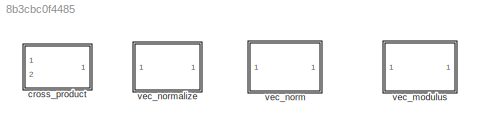
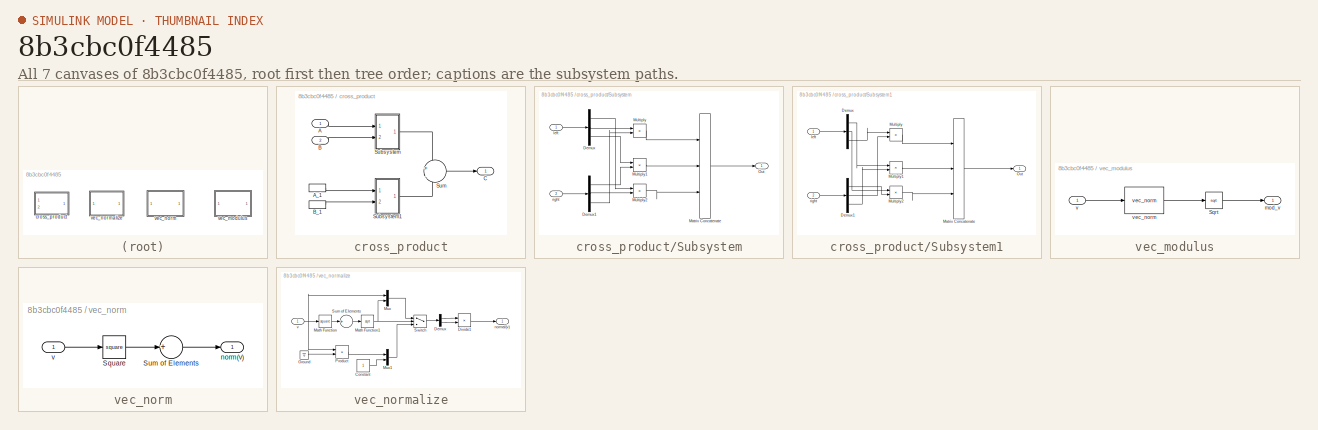
[diagram: thumbnail index - all 7 canvases of the model, root first then tree order]
MODEL slx_8b3cbc0f4485
KIND library
CONFIG AbsTol = auto
CONFIG EnableMultiTasking = off
CONFIG FixedStep = auto
CONFIG MaxStep = auto
CONFIG MinStep = auto
CONFIG RelTol = 1e-3
CONFIG SampleTimeConstraint = Unconstrained
CONFIG Solver = VariableStepAuto
CONFIG SolverName = VariableStepAuto
CONFIG StartTime = 0.0
CONFIG StopTime = 10.0
BLOCK [SubSystem] cross_product
  Ports = [2, 1]
  RequestExecContextInheritance = off
BLOCK [Inport] cross_product/A
  IconDisplay = Port number
BLOCK [InportShadow] cross_product/A_1
  IconDisplay = Port number
BLOCK [Inport] cross_product/B
  IconDisplay = Port number
  Port = 2
BLOCK [InportShadow] cross_product/B_1
  IconDisplay = Port number
  Port = 2
BLOCK [Outport] cross_product/C
  IconDisplay = Port number
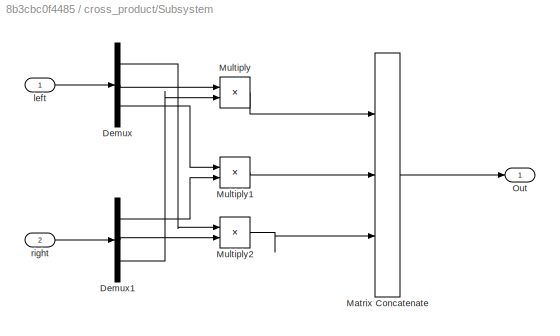
BLOCK [SubSystem] cross_product/Subsystem
  Ports = [2, 1]
  RequestExecContextInheritance = off
BLOCK [Demux] cross_product/Subsystem/Demux
  DisplayOption = bar
  Outputs = 3
  Ports = [1, 3]
BLOCK [Demux] cross_product/Subsystem/Demux1
  DisplayOption = bar
  Outputs = 3
  Ports = [1, 3]
BLOCK [Concatenate] cross_product/Subsystem/Matrix Concatenate
  ConcatenateDimension = 2
  NumInputs = 3
  Ports = [3, 1]
BLOCK [Product] cross_product/Subsystem/Multiply
  InputSameDT = off
  Ports = [2, 1]
  RndMeth = Floor
  SaturateOnIntegerOverflow = off
BLOCK [Product] cross_product/Subsystem/Multiply1
  InputSameDT = off
  Ports = [2, 1]
  RndMeth = Floor
  SaturateOnIntegerOverflow = off
BLOCK [Product] cross_product/Subsystem/Multiply2
  InputSameDT = off
  Ports = [2, 1]
  RndMeth = Floor
  SaturateOnIntegerOverflow = off
BLOCK [Outport] cross_product/Subsystem/Out
  IconDisplay = Port number
BLOCK [Inport] cross_product/Subsystem/left
  IconDisplay = Port number
BLOCK [Inport] cross_product/Subsystem/right
  IconDisplay = Port number
  Port = 2
BLOCK [SubSystem] cross_product/Subsystem1
  Ports = [2, 1]
  RequestExecContextInheritance = off
BLOCK [Demux] cross_product/Subsystem1/Demux
  DisplayOption = bar
  Outputs = 3
  Ports = [1, 3]
BLOCK [Demux] cross_product/Subsystem1/Demux1
  DisplayOption = bar
  Outputs = 3
  Ports = [1, 3]
BLOCK [Concatenate] cross_product/Subsystem1/Matrix Concatenate
  ConcatenateDimension = 2
  NumInputs = 3
  Ports = [3, 1]
BLOCK [Product] cross_product/Subsystem1/Multiply
  InputSameDT = off
  Ports = [2, 1]
  RndMeth = Floor
  SaturateOnIntegerOverflow = off
BLOCK [Product] cross_product/Subsystem1/Multiply1
  InputSameDT = off
  Ports = [2, 1]
  RndMeth = Floor
  SaturateOnIntegerOverflow = off
BLOCK [Product] cross_product/Subsystem1/Multiply2
  InputSameDT = off
  Ports = [2, 1]
  RndMeth = Floor
  SaturateOnIntegerOverflow = off
BLOCK [Outport] cross_product/Subsystem1/Out
  IconDisplay = Port number
BLOCK [Inport] cross_product/Subsystem1/left
  IconDisplay = Port number
BLOCK [Inport] cross_product/Subsystem1/right
  IconDisplay = Port number
  Port = 2
BLOCK [Sum] cross_product/Sum
  IconShape = round
  Inputs = +|-
  Ports = [2, 1]
BLOCK [SubSystem] vec_modulus
  Ports = [1, 1]
  RequestExecContextInheritance = off
BLOCK [Sqrt] vec_modulus/Sqrt
BLOCK [Outport] vec_modulus/mod_v
  IconDisplay = Port number
BLOCK [Inport] vec_modulus/v
  IconDisplay = Port number
BLOCK [Reference] vec_modulus/vec_norm  REF=$bdroot/vec_norm
  Ports = [1, 1]
  SourceBlock = $bdroot/vec_norm
  SourceType = SubSystem
BLOCK [SubSystem] vec_norm
  Ports = [1, 1]
  RequestExecContextInheritance = off
BLOCK [Math] vec_norm/Square
  Operator = square
  Ports = [1, 1]
BLOCK [Sum] vec_norm/Sum of Elements
  InputSameDT = off
  Inputs = +
  Ports = [1, 1]
  SaturateOnIntegerOverflow = off
BLOCK [Outport] vec_norm/norm(v)
  IconDisplay = Port number
BLOCK [Inport] vec_norm/v
  IconDisplay = Port number
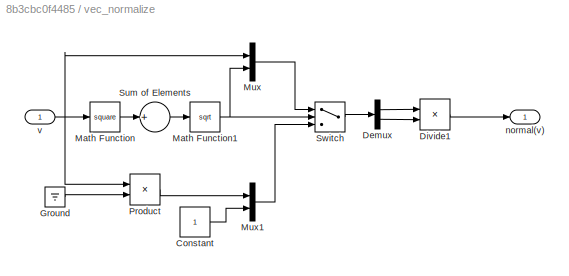
BLOCK [SubSystem] vec_normalize
  Ports = [1, 1]
  RequestExecContextInheritance = off
BLOCK [Constant] vec_normalize/Constant
  OutDataTypeStr = single
BLOCK [Demux] vec_normalize/Demux
  DisplayOption = bar
  Outputs = [-1 1]
  Ports = [1, 2]
BLOCK [Product] vec_normalize/Divide1
  InputSameDT = off
  Inputs = */
  OutDataTypeStr = single
  Ports = [2, 1]
  RndMeth = Floor
  SaturateOnIntegerOverflow = off
BLOCK [Ground] vec_normalize/Ground
BLOCK [Math] vec_normalize/Math Function
  Operator = square
  Ports = [1, 1]
BLOCK [Math] vec_normalize/Math Function1
  Operator = sqrt
  Ports = [1, 1]
BLOCK [Mux] vec_normalize/Mux
  DisplayOption = bar
  Inputs = 2
  Ports = [2, 1]
BLOCK [Mux] vec_normalize/Mux1
  DisplayOption = bar
  Inputs = 2
  Ports = [2, 1]
BLOCK [Product] vec_normalize/Product
  InputSameDT = off
  OutDataTypeStr = single
  Ports = [2, 1]
  SaturateOnIntegerOverflow = off
BLOCK [Sum] vec_normalize/Sum of Elements
  AccumDataTypeStr = single
  InputSameDT = off
  Inputs = +
  OutDataTypeStr = Inherit: Inherit via internal rule
  Ports = [1, 1]
  SaturateOnIntegerOverflow = off
BLOCK [Switch] vec_normalize/Switch
  Criteria = u2 > Threshold
  InputSameDT = off
  SaturateOnIntegerOverflow = off
BLOCK [Outport] vec_normalize/normal(v)
  IconDisplay = Port number
BLOCK [Inport] vec_normalize/v
  IconDisplay = Port number
LINE cross_product/A:1 -> cross_product/Subsystem:1
LINE cross_product/A_1:1 -> cross_product/Subsystem1:1
LINE cross_product/B:1 -> cross_product/Subsystem:2
LINE cross_product/B_1:1 -> cross_product/Subsystem1:2
LINE cross_product/Subsystem/Demux1:1 -> cross_product/Subsystem/Multiply1:2
LINE cross_product/Subsystem/Demux1:2 -> cross_product/Subsystem/Multiply2:2
LINE cross_product/Subsystem/Demux1:3 -> cross_product/Subsystem/Multiply:2
LINE cross_product/Subsystem/Demux:1 -> cross_product/Subsystem/Multiply2:1
LINE cross_product/Subsystem/Demux:2 -> cross_product/Subsystem/Multiply:1
LINE cross_product/Subsystem/Demux:3 -> cross_product/Subsystem/Multiply1:1
LINE cross_product/Subsystem/Matrix Concatenate:1 -> cross_product/Subsystem/Out:1
LINE cross_product/Subsystem/Multiply1:1 -> cross_product/Subsystem/Matrix Concatenate:2
LINE cross_product/Subsystem/Multiply2:1 -> cross_product/Subsystem/Matrix Concatenate:3
LINE cross_product/Subsystem/Multiply:1 -> cross_product/Subsystem/Matrix Concatenate:1
LINE cross_product/Subsystem/left:1 -> cross_product/Subsystem/Demux:1
LINE cross_product/Subsystem/right:1 -> cross_product/Subsystem/Demux1:1
LINE cross_product/Subsystem1/Demux1:1 -> cross_product/Subsystem1/Multiply2:2
LINE cross_product/Subsystem1/Demux1:2 -> cross_product/Subsystem1/Multiply:2
LINE cross_product/Subsystem1/Demux1:3 -> cross_product/Subsystem1/Multiply1:2
LINE cross_product/Subsystem1/Demux:1 -> cross_product/Subsystem1/Multiply1:1
LINE cross_product/Subsystem1/Demux:2 -> cross_product/Subsystem1/Multiply2:1
LINE cross_product/Subsystem1/Demux:3 -> cross_product/Subsystem1/Multiply:1
LINE cross_product/Subsystem1/Matrix Concatenate:1 -> cross_product/Subsystem1/Out:1
LINE cross_product/Subsystem1/Multiply1:1 -> cross_product/Subsystem1/Matrix Concatenate:2
LINE cross_product/Subsystem1/Multiply2:1 -> cross_product/Subsystem1/Matrix Concatenate:3
LINE cross_product/Subsystem1/Multiply:1 -> cross_product/Subsystem1/Matrix Concatenate:1
LINE cross_product/Subsystem1/left:1 -> cross_product/Subsystem1/Demux:1
LINE cross_product/Subsystem1/right:1 -> cross_product/Subsystem1/Demux1:1
LINE cross_product/Subsystem1:1 -> cross_product/Sum:2
LINE cross_product/Subsystem:1 -> cross_product/Sum:1
LINE cross_product/Sum:1 -> cross_product/C:1
LINE vec_modulus/Sqrt:1 -> vec_modulus/mod_v:1
LINE vec_modulus/v:1 -> vec_modulus/vec_norm:1
LINE vec_modulus/vec_norm:1 -> vec_modulus/Sqrt:1
LINE vec_norm/Square:1 -> vec_norm/Sum of Elements:1
LINE vec_norm/Sum of Elements:1 -> vec_norm/norm(v):1
LINE vec_norm/v:1 -> vec_norm/Square:1
LINE vec_normalize/Constant:1 -> vec_normalize/Mux1:2
LINE vec_normalize/Demux:1 -> vec_normalize/Divide1:1
LINE vec_normalize/Demux:2 -> vec_normalize/Divide1:2
LINE vec_normalize/Divide1:1 -> vec_normalize/normal(v):1
LINE vec_normalize/Ground:1 -> vec_normalize/Product:2
NET vec_normalize/Math Function1:1 -> vec_normalize/Mux:2, vec_normalize/Switch:2
LINE vec_normalize/Math Function:1 -> vec_normalize/Sum of Elements:1
LINE vec_normalize/Mux1:1 -> vec_normalize/Switch:3
LINE vec_normalize/Mux:1 -> vec_normalize/Switch:1
LINE vec_normalize/Product:1 -> vec_normalize/Mux1:1
LINE vec_normalize/Sum of Elements:1 -> vec_normalize/Math Function1:1
LINE vec_normalize/Switch:1 -> vec_normalize/Demux:1
NET vec_normalize/v:1 -> vec_normalize/Math Function:1, vec_normalize/Mux:1, vec_normalize/Product:1
note: NET lines group one-source signal fan-out (src -> all destinations, sorted); 1:1 wires keep LINE
